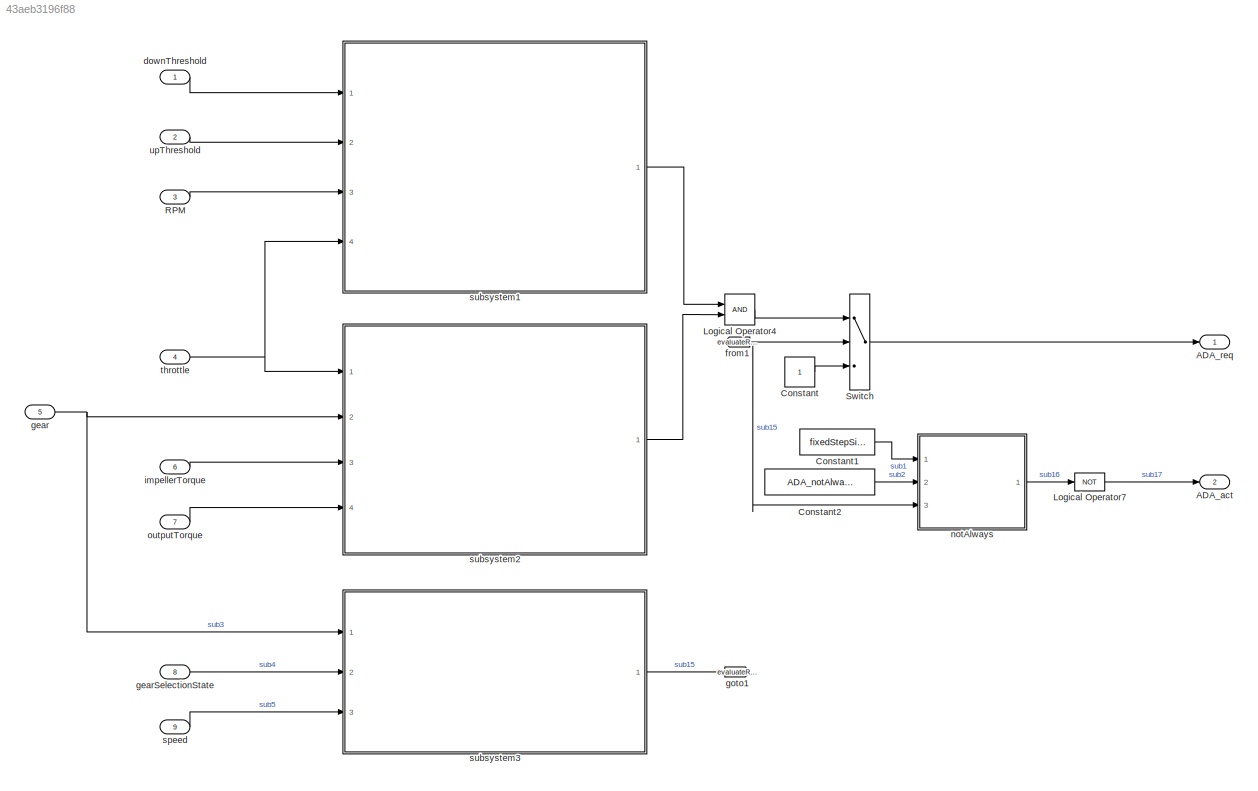
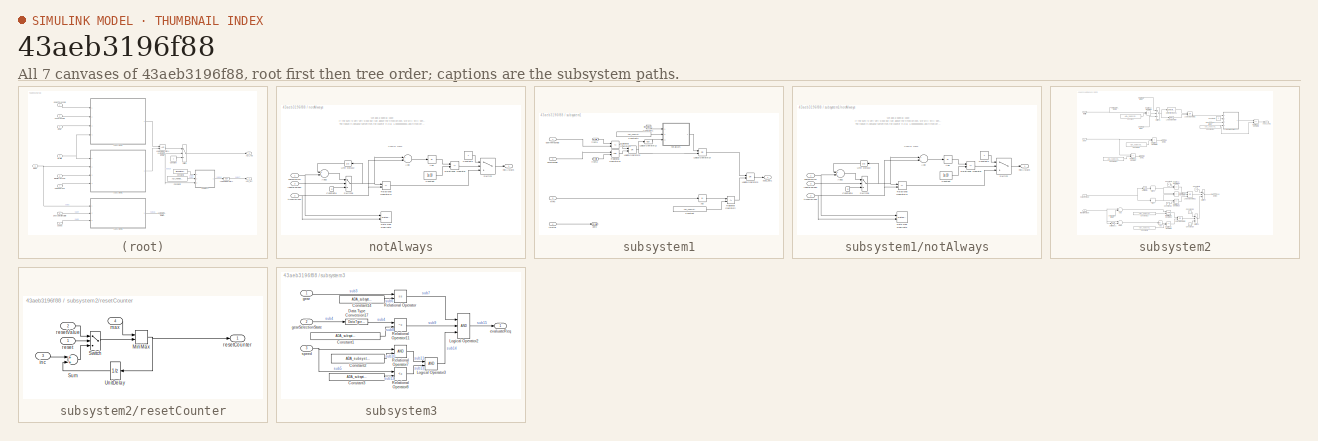
[diagram: thumbnail index - all 7 canvases of the model, root first then tree order]
MODEL slx_43aeb3196f88
KIND model
CONFIG AbsTol = auto
CONFIG EnableMultiTasking = off
CONFIG FixedStep = fixedStepSize
CONFIG MaxStep = auto
CONFIG MinStep = auto
CONFIG RelTol = 1e-3
CONFIG SampleTimeConstraint = Unconstrained
CONFIG Solver = FixedStepAuto
CONFIG SolverName = FixedStepAuto
CONFIG StartTime = 0.0
CONFIG StopTime = 10.0
BLOCK [Outport] ADA_act
  IconDisplay = Port number
  OutDataTypeStr = boolean
  Port = 2
  PortDimensions = 1
  SamplingMode = Sample based
  SignalType = real
  VectorParamsAs1DForOutWhenUnconnected = off
BLOCK [Outport] ADA_req
  IconDisplay = Port number
  OutDataTypeStr = boolean
  PortDimensions = 1
  SamplingMode = Sample based
  SignalType = real
  VectorParamsAs1DForOutWhenUnconnected = off
BLOCK [Constant] Constant
  OutDataTypeStr = boolean
BLOCK [Constant] Constant1
  Value = fixedStepSize
BLOCK [Constant] Constant2
  Value = ADA_notAlwaysHorizon
BLOCK [Logic] Logical Operator4
  AllPortsSameDT = off
  OutDataTypeStr = boolean
  Ports = [2, 1]
BLOCK [Logic] Logical Operator7
  AllPortsSameDT = off
  Operator = NOT
  OutDataTypeStr = boolean
  Ports = [1, 1]
BLOCK [Inport] RPM
  BusOutputAsStruct = on
  Description = Engine Speed [rpm]\nEngine Speed derivative [rpm/s]
  IconDisplay = Port number
  OutDataTypeStr = double
  Port = 3
  PortDimensions = 1
  SamplingMode = Sample based
  SignalType = real
BLOCK [Switch] Switch
  Criteria = u2 ~= 0
  InputSameDT = off
  SaturateOnIntegerOverflow = off
BLOCK [Inport] downThreshold
  IconDisplay = Port number
  OutDataTypeStr = double
BLOCK [From] from1
  AttributesFormatString = %<GotoTag>
  GotoTag = evaluateReq
BLOCK [Inport] gear
  IconDisplay = Port number
  Port = 5
BLOCK [Inport] gearSelectionState
  IconDisplay = Port number
  Port = 8
BLOCK [Goto] goto1
  AttributesFormatString = %<GotoTag>
  GotoTag = evaluateReq
BLOCK [Inport] impellerTorque
  IconDisplay = Port number
  Port = 6
BLOCK [SubSystem] notAlways
  CopyFcn = set_param(gcbh,'LinkStatus','none');
  Ports = [3, 1]
  RequestExecContextInheritance = off
BLOCK [Abs] notAlways/Abs
  SaturateOnIntegerOverflow = off
BLOCK [Sum] notAlways/Add
  InputSameDT = off
  Inputs = +-
  OutDataTypeStr = Inherit: Inherit via internal rule
  Ports = [2, 1]
  SaturateOnIntegerOverflow = off
BLOCK [Sum] notAlways/Add2
  InputSameDT = off
  OutDataTypeStr = Inherit: Inherit via internal rule
  Ports = [2, 1]
  SaturateOnIntegerOverflow = off
BLOCK [Constant] notAlways/Constant
  Value = 1e-10
BLOCK [Constant] notAlways/Constant1
  OutDataTypeStr = boolean
BLOCK [Constant] notAlways/Constant8
  OutDataTypeStr = Inherit: Inherit via back propagation
  Value = 0
BLOCK [DataTypeDuplicate] notAlways/Data Type Duplicate
  Ports = [2]
BLOCK [RelationalOperator] notAlways/Relational Operator
  InputSameDT = off
  Operator = <=
  OutDataTypeStr = boolean
  Ports = [2, 1]
  RndMeth = Simplest
BLOCK [RelationalOperator] notAlways/Relational Operator14
  InputSameDT = off
  Operator = <=
  OutDataTypeStr = boolean
  Ports = [2, 1]
BLOCK [Switch] notAlways/Switch
  Criteria = u2 ~= 0
  InputSameDT = off
  SaturateOnIntegerOverflow = off
BLOCK [Switch] notAlways/Switch6
  Criteria = u2 ~= 0
  InputSameDT = off
  SaturateOnIntegerOverflow = off
BLOCK [UnitDelay] notAlways/Unit Delay2
  HasFrameUpgradeWarning = on
  SampleTime = -1
BLOCK [Inport] notAlways/inputBoolean
  IconDisplay = Port number
  Port = 3
BLOCK [Outport] notAlways/notAlways
  IconDisplay = Port number
  VectorParamsAs1DForOutWhenUnconnected = off
BLOCK [Inport] notAlways/sampleTime
  IconDisplay = Port number
BLOCK [Inport] notAlways/timeHorizon
  IconDisplay = Port number
  Port = 2
BLOCK [Inport] outputTorque
  IconDisplay = Port number
  Port = 7
BLOCK [Inport] speed
  IconDisplay = Port number
  Port = 9
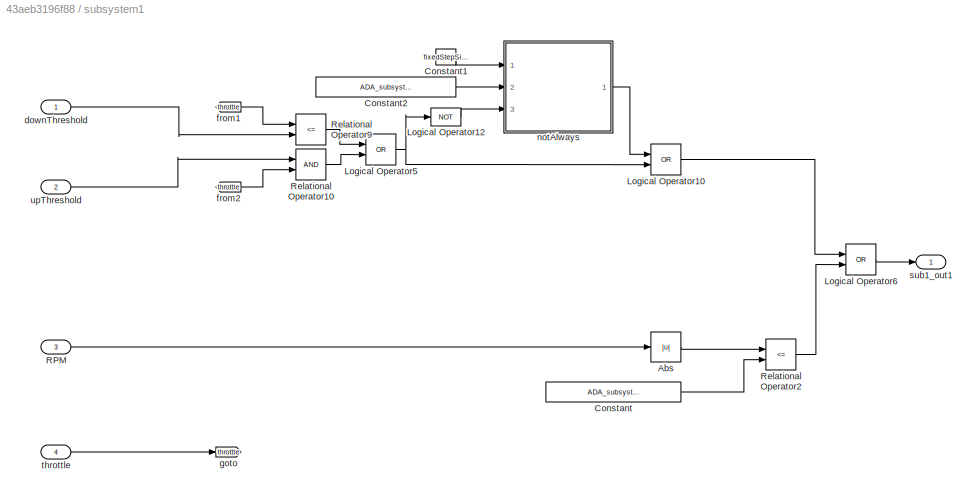
BLOCK [SubSystem] subsystem1
  Ports = [4, 1]
  RequestExecContextInheritance = off
BLOCK [Abs] subsystem1/Abs
  SaturateOnIntegerOverflow = off
BLOCK [Constant] subsystem1/Constant
  Value = ADA_subsystem1_rpmLimit
BLOCK [Constant] subsystem1/Constant1
  Value = fixedStepSize
BLOCK [Constant] subsystem1/Constant2
  Value = ADA_subsystem1_timeHorizon
BLOCK [Logic] subsystem1/Logical Operator10
  AllPortsSameDT = off
  Operator = OR
  OutDataTypeStr = boolean
  Ports = [2, 1]
BLOCK [Logic] subsystem1/Logical Operator12
  AllPortsSameDT = off
  Operator = NOT
  OutDataTypeStr = boolean
  Ports = [1, 1]
BLOCK [Logic] subsystem1/Logical Operator5
  AllPortsSameDT = off
  Operator = OR
  OutDataTypeStr = boolean
  Ports = [2, 1]
BLOCK [Logic] subsystem1/Logical Operator6
  AllPortsSameDT = off
  Operator = OR
  OutDataTypeStr = boolean
  Ports = [2, 1]
BLOCK [Inport] subsystem1/RPM
  IconDisplay = Port number
  Port = 3
BLOCK [RelationalOperator] subsystem1/Relational Operator10
  InputSameDT = off
  OutDataTypeStr = boolean
  Ports = [2, 1]
BLOCK [RelationalOperator] subsystem1/Relational Operator2
  InputSameDT = off
  Operator = <=
  OutDataTypeStr = boolean
  Ports = [2, 1]
BLOCK [RelationalOperator] subsystem1/Relational Operator9
  InputSameDT = off
  Operator = <=
  OutDataTypeStr = boolean
  Ports = [2, 1]
BLOCK [Inport] subsystem1/downThreshold
  IconDisplay = Port number
BLOCK [From] subsystem1/from1
  AttributesFormatString = %<GotoTag>
  GotoTag = throttle
BLOCK [From] subsystem1/from2
  AttributesFormatString = %<GotoTag>
  GotoTag = throttle
BLOCK [Goto] subsystem1/goto
  AttributesFormatString = %<GotoTag>
  GotoTag = throttle
BLOCK [SubSystem] subsystem1/notAlways
  CopyFcn = set_param(gcbh,'LinkStatus','none');
  Ports = [3, 1]
  RequestExecContextInheritance = off
BLOCK [Abs] subsystem1/notAlways/Abs
  SaturateOnIntegerOverflow = off
BLOCK [Sum] subsystem1/notAlways/Add
  InputSameDT = off
  Inputs = +-
  OutDataTypeStr = Inherit: Inherit via internal rule
  Ports = [2, 1]
  SaturateOnIntegerOverflow = off
BLOCK [Sum] subsystem1/notAlways/Add2
  InputSameDT = off
  OutDataTypeStr = Inherit: Inherit via internal rule
  Ports = [2, 1]
  SaturateOnIntegerOverflow = off
BLOCK [Constant] subsystem1/notAlways/Constant
  Value = 1e-10
BLOCK [Constant] subsystem1/notAlways/Constant1
  OutDataTypeStr = boolean
BLOCK [Constant] subsystem1/notAlways/Constant8
  OutDataTypeStr = Inherit: Inherit via back propagation
  Value = 0
BLOCK [DataTypeDuplicate] subsystem1/notAlways/Data Type Duplicate
  Ports = [2]
BLOCK [RelationalOperator] subsystem1/notAlways/Relational Operator
  InputSameDT = off
  Operator = <=
  OutDataTypeStr = boolean
  Ports = [2, 1]
  RndMeth = Simplest
BLOCK [RelationalOperator] subsystem1/notAlways/Relational Operator14
  InputSameDT = off
  Operator = <=
  OutDataTypeStr = boolean
  Ports = [2, 1]
BLOCK [Switch] subsystem1/notAlways/Switch
  Criteria = u2 ~= 0
  InputSameDT = off
  SaturateOnIntegerOverflow = off
BLOCK [Switch] subsystem1/notAlways/Switch6
  Criteria = u2 ~= 0
  InputSameDT = off
  SaturateOnIntegerOverflow = off
BLOCK [UnitDelay] subsystem1/notAlways/Unit Delay2
  HasFrameUpgradeWarning = on
  SampleTime = -1
BLOCK [Inport] subsystem1/notAlways/inputBoolean
  IconDisplay = Port number
  Port = 3
BLOCK [Outport] subsystem1/notAlways/notAlways
  IconDisplay = Port number
  VectorParamsAs1DForOutWhenUnconnected = off
BLOCK [Inport] subsystem1/notAlways/sampleTime
  IconDisplay = Port number
BLOCK [Inport] subsystem1/notAlways/timeHorizon
  IconDisplay = Port number
  Port = 2
BLOCK [Outport] subsystem1/sub1_out1
  IconDisplay = Port number
  VectorParamsAs1DForOutWhenUnconnected = off
BLOCK [Inport] subsystem1/throttle
  IconDisplay = Port number
  Port = 4
BLOCK [Inport] subsystem1/upThreshold
  IconDisplay = Port number
  Port = 2
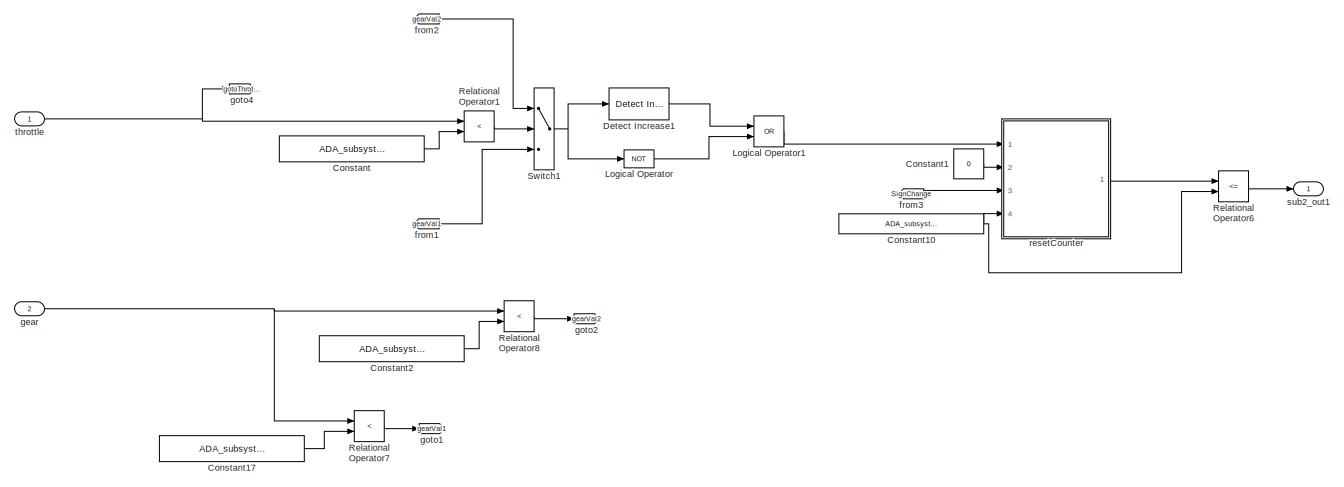
[diagram: subsystem2 - part 1/2, full width, top band]
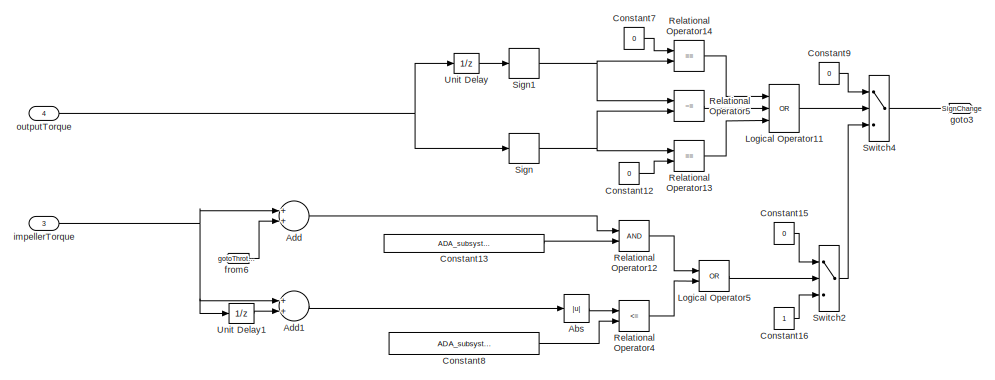
[diagram: subsystem2 - part 2/2, full width, bottom band]
BLOCK [SubSystem] subsystem2
  Ports = [4, 1]
  RequestExecContextInheritance = off
BLOCK [Abs] subsystem2/Abs
  SaturateOnIntegerOverflow = off
BLOCK [Sum] subsystem2/Add
  InputSameDT = off
  OutDataTypeStr = Inherit: Inherit via internal rule
  Ports = [2, 1]
  SaturateOnIntegerOverflow = off
BLOCK [Sum] subsystem2/Add1
  InputSameDT = off
  OutDataTypeStr = Inherit: Inherit via internal rule
  Ports = [2, 1]
  SaturateOnIntegerOverflow = off
BLOCK [Constant] subsystem2/Constant
  Value = ADA_subsystem2_throttleMin
BLOCK [Constant] subsystem2/Constant1
  Value = 0
BLOCK [Constant] subsystem2/Constant10
  Value = ADA_subsystem2_maxValue
BLOCK [Constant] subsystem2/Constant12
  Value = 0
BLOCK [Constant] subsystem2/Constant13
  Value = ADA_subsystem2_impellerMin
BLOCK [Constant] subsystem2/Constant15
  Value = 0
BLOCK [Constant] subsystem2/Constant16
BLOCK [Constant] subsystem2/Constant17
  Value = ADA_subsystem2_gear1
BLOCK [Constant] subsystem2/Constant2
  Value = ADA_subsystem2_gear2
BLOCK [Constant] subsystem2/Constant7
  Value = 0
BLOCK [Constant] subsystem2/Constant8
  Value = ADA_subsystem2_impellerMax
BLOCK [Constant] subsystem2/Constant9
  Value = 0
BLOCK [Reference] subsystem2/Detect Increase1  REF=simulink/Logic and Bit
Operations/Detect
Increase
  Ports = [1, 1]
  SourceBlock = simulink/Logic and Bit\nOperations/Detect\nIncrease
  SourceProductBaseCode = SL
  SourceProductName = Simulink
  SourceType = Detect Increase
BLOCK [Logic] subsystem2/Logical Operator
  AllPortsSameDT = off
  Operator = NOT
  OutDataTypeStr = boolean
  Ports = [1, 1]
BLOCK [Logic] subsystem2/Logical Operator1
  AllPortsSameDT = off
  Operator = OR
  OutDataTypeStr = boolean
  Ports = [2, 1]
BLOCK [Logic] subsystem2/Logical Operator11
  AllPortsSameDT = off
  Inputs = 3
  Operator = OR
  OutDataTypeStr = boolean
  Ports = [3, 1]
BLOCK [Logic] subsystem2/Logical Operator5
  AllPortsSameDT = off
  Operator = OR
  OutDataTypeStr = boolean
  Ports = [2, 1]
BLOCK [RelationalOperator] subsystem2/Relational Operator1
  InputSameDT = off
  Operator = <
  OutDataTypeStr = boolean
  Ports = [2, 1]
BLOCK [RelationalOperator] subsystem2/Relational Operator12
  InputSameDT = off
  OutDataTypeStr = boolean
  Ports = [2, 1]
BLOCK [RelationalOperator] subsystem2/Relational Operator13
  InputSameDT = off
  Operator = ==
  OutDataTypeStr = boolean
  Ports = [2, 1]
BLOCK [RelationalOperator] subsystem2/Relational Operator14
  InputSameDT = off
  Operator = ==
  OutDataTypeStr = boolean
  Ports = [2, 1]
BLOCK [RelationalOperator] subsystem2/Relational Operator4
  InputSameDT = off
  Operator = <=
  OutDataTypeStr = boolean
  Ports = [2, 1]
BLOCK [RelationalOperator] subsystem2/Relational Operator5
  InputSameDT = off
  Operator = ~=
  OutDataTypeStr = boolean
  Ports = [2, 1]
BLOCK [RelationalOperator] subsystem2/Relational Operator6
  InputSameDT = off
  Operator = <=
  OutDataTypeStr = boolean
  Ports = [2, 1]
BLOCK [RelationalOperator] subsystem2/Relational Operator7
  InputSameDT = off
  Operator = <
  OutDataTypeStr = boolean
  Ports = [2, 1]
BLOCK [RelationalOperator] subsystem2/Relational Operator8
  InputSameDT = off
  Operator = <
  OutDataTypeStr = boolean
  Ports = [2, 1]
BLOCK [Signum] subsystem2/Sign
BLOCK [Signum] subsystem2/Sign1
BLOCK [Switch] subsystem2/Switch1
  Criteria = u2 ~= 0
  InputSameDT = off
  SaturateOnIntegerOverflow = off
BLOCK [Switch] subsystem2/Switch2
  Criteria = u2 ~= 0
  InputSameDT = off
  SaturateOnIntegerOverflow = off
BLOCK [Switch] subsystem2/Switch4
  Criteria = u2 ~= 0
  InputSameDT = off
  SaturateOnIntegerOverflow = off
BLOCK [UnitDelay] subsystem2/Unit Delay
  HasFrameUpgradeWarning = on
  SampleTime = -1
BLOCK [UnitDelay] subsystem2/Unit Delay1
  HasFrameUpgradeWarning = on
  SampleTime = -1
BLOCK [From] subsystem2/from1
  AttributesFormatString = %<GotoTag>
  GotoTag = gearVal1
BLOCK [From] subsystem2/from2
  AttributesFormatString = %<GotoTag>
  GotoTag = gearVal2
BLOCK [From] subsystem2/from3
  AttributesFormatString = %<GotoTag>
  GotoTag = SignChange
BLOCK [From] subsystem2/from6
  AttributesFormatString = %<GotoTag>
  GotoTag = gotoThrottle
BLOCK [Inport] subsystem2/gear
  IconDisplay = Port number
  Port = 2
BLOCK [Goto] subsystem2/goto1
  AttributesFormatString = %<GotoTag>
  GotoTag = gearVal1
BLOCK [Goto] subsystem2/goto2
  AttributesFormatString = %<GotoTag>
  GotoTag = gearVal2
BLOCK [Goto] subsystem2/goto3
  AttributesFormatString = %<GotoTag>
  GotoTag = SignChange
BLOCK [Goto] subsystem2/goto4
  AttributesFormatString = %<GotoTag>
  GotoTag = gotoThrottle
BLOCK [Inport] subsystem2/impellerTorque
  IconDisplay = Port number
  Port = 3
BLOCK [Inport] subsystem2/outputTorque
  IconDisplay = Port number
  Port = 4
BLOCK [SubSystem] subsystem2/resetCounter
  CopyFcn = set_param(gcbh,'LinkStatus','none');
  Ports = [4, 1]
  RequestExecContextInheritance = off
BLOCK [MinMax] subsystem2/resetCounter/MinMax
  Inputs = 2
  OutDataTypeStr = Inherit: Inherit via back propagation
  Ports = [2, 1]
  SaturateOnIntegerOverflow = off
  Tag = struct('comment',struct('text','','placement',1),'inputs','2','logdata',struct('maxnumvals',4096,'plotchannels',[],'loggingmode',3,'channels',1),'output',struct('width',1,'name','$S_$B','unit','','type','Float32','offset',0,'max',NaN,'min',NaN,'freeze',1,'lsb',1,'arb',0,'class','default','address','','description','','autoscalingmode',1,'lowerheadroom',1,'upperheadroom',1,'headroomunit','bit','che...<+151ch>
BLOCK [Sum] subsystem2/resetCounter/Sum
  AccumDataTypeStr = Inherit: Same as first input
  OutDataTypeStr = Inherit: Same as accumulator
  Ports = [2, 1]
  SaturateOnIntegerOverflow = off
  Tag = struct('comment',struct('text','','placement',1),'logdata',struct('maxnumvals',4096,'plotchannels',[],'loggingmode',3,'channels',1),'output',struct('width',1,'name','$S_$B','unit','','type','Float32','offset',0,'max',NaN,'min',NaN,'freeze',1,'lsb',1,'arb',0,'class','default','address','','description','','autoscalingmode',1,'lowerheadroom',1,'upperheadroom',1,'headroomunit','bit','checkmin',0,'che...<+135ch>
BLOCK [Switch] subsystem2/resetCounter/Switch
  Criteria = u2 ~= 0
  SaturateOnIntegerOverflow = off
  Tag = struct('comment',struct('text','','placement',1),'logdata',struct('maxnumvals',4096,'plotchannels',[],'loggingmode',3,'channels',1),'output',struct('width',1,'name','$S_$B','unit','','type','Float32','offset',0,'max',NaN,'min',NaN,'freeze',1,'lsb',1,'arb',0,'class','default','address','','description','','autoscalingmode',1,'lowerheadroom',1,'upperheadroom',1,'headroomunit','bit','checkmin',0,'che...<+388ch>
  Threshold = 0.5
BLOCK [UnitDelay] subsystem2/resetCounter/UnitDelay
  HasFrameUpgradeWarning = on
  SampleTime = -1
  Tag = struct('comment',struct('text','','placement',1),'logdata',struct('maxnumvals',4096,'plotchannels',[],'loggingmode',3,'channels',1),'output',struct('width',1,'name','$S_$B','unit','','type','Float32','offset',0,'max',NaN,'min',NaN,'freeze',1,'lsb',1,'arb',0,'class','default','address','','description','','autoscalingmode',1,'lowerheadroom',1,'upperheadroom',1,'headroomunit','bit','checkmin',0,'che...<+348ch>
BLOCK [Inport] subsystem2/resetCounter/inc
  IconDisplay = Port number
  Port = 3
BLOCK [Inport] subsystem2/resetCounter/max
  IconDisplay = Port number
  Port = 4
BLOCK [Inport] subsystem2/resetCounter/reset
  IconDisplay = Port number
BLOCK [Outport] subsystem2/resetCounter/resetCounter
  IconDisplay = Port number
  VectorParamsAs1DForOutWhenUnconnected = off
BLOCK [Inport] subsystem2/resetCounter/resetValue
  IconDisplay = Port number
  Port = 2
BLOCK [Outport] subsystem2/sub2_out1
  IconDisplay = Port number
  VectorParamsAs1DForOutWhenUnconnected = off
BLOCK [Inport] subsystem2/throttle
  IconDisplay = Port number
BLOCK [SubSystem] subsystem3
  Ports = [3, 1]
  RequestExecContextInheritance = off
BLOCK [Constant] subsystem3/Constant1
  Value = ADA_subsystem3_gearSelectionState
BLOCK [Constant] subsystem3/Constant14
  Value = ADA_subsystem3_gear
BLOCK [Constant] subsystem3/Constant2
  Value = ADA_subsystem3_speedMin
BLOCK [Constant] subsystem3/Constant3
  Value = ADA_subsystem3_speedMax
BLOCK [DataTypeConversion] subsystem3/Data Type Conversion17
  RndMeth = Floor
  SaturateOnIntegerOverflow = off
BLOCK [Logic] subsystem3/Logical Operator2
  AllPortsSameDT = off
  Inputs = 3
  OutDataTypeStr = boolean
  Ports = [3, 1]
BLOCK [Logic] subsystem3/Logical Operator3
  AllPortsSameDT = off
  OutDataTypeStr = boolean
  Ports = [2, 1]
BLOCK [RelationalOperator] subsystem3/Relational Operator
  InputSameDT = off
  Operator = ==
  OutDataTypeStr = boolean
  Ports = [2, 1]
BLOCK [RelationalOperator] subsystem3/Relational Operator11
  InputSameDT = off
  Operator = ~=
  OutDataTypeStr = boolean
  Ports = [2, 1]
BLOCK [RelationalOperator] subsystem3/Relational Operator7
  InputSameDT = off
  OutDataTypeStr = boolean
  Ports = [2, 1]
BLOCK [RelationalOperator] subsystem3/Relational Operator8
  InputSameDT = off
  Operator = <=
  OutDataTypeStr = boolean
  Ports = [2, 1]
BLOCK [Outport] subsystem3/evaluateReq
  IconDisplay = Port number
  VectorParamsAs1DForOutWhenUnconnected = off
BLOCK [Inport] subsystem3/gear
  IconDisplay = Port number
BLOCK [Inport] subsystem3/gearSelectionState
  IconDisplay = Port number
  Port = 2
BLOCK [Inport] subsystem3/speed
  IconDisplay = Port number
  Port = 3
BLOCK [Inport] throttle
  IconDisplay = Port number
  Port = 4
BLOCK [Inport] upThreshold
  IconDisplay = Port number
  OutDataTypeStr = double
  Port = 2
ANNOTATION notAlways: We add a special case: If the sum is very very close but just above the timeHorizon, we will still send TRUE as output! The reason is because sometimes the counter is e.g. 1.000000000001 and timeHorizon is 1, which is essentially just a floating point error.
ANNOTATION notAlways: Special check
ANNOTATION subsystem1/notAlways: We add a special case: If the sum is very very close but just above the timeHorizon, we will still send TRUE as output! The reason is because sometimes the counter is e.g. 1.000000000001 and timeHorizon is 1, which is essentially just a floating point error.
ANNOTATION subsystem1/notAlways: Special check
LINE Constant1:1 -> notAlways:1
LINE Constant2:1 -> notAlways:2
LINE Constant:1 -> Switch:3
LINE Logical Operator4:1 -> Switch:1
LINE Logical Operator7:1 -> ADA_act:1
LINE RPM:1 -> subsystem1:3
LINE Switch:1 -> ADA_req:1
LINE downThreshold:1 -> subsystem1:1
NET from1:1 -> Switch:2, notAlways:3
NET gear:1 -> subsystem2:2, subsystem3:1
LINE gearSelectionState:1 -> subsystem3:2
LINE impellerTorque:1 -> subsystem2:3
LINE notAlways/Abs:1 -> notAlways/Relational Operator:1
LINE notAlways/Add2:1 -> notAlways/Switch6:1
LINE notAlways/Add:1 -> notAlways/Abs:1
LINE notAlways/Constant1:1 -> notAlways/Switch:1
LINE notAlways/Constant8:1 -> notAlways/Switch6:3
LINE notAlways/Constant:1 -> notAlways/Relational Operator:2
LINE notAlways/Relational Operator14:1 -> notAlways/Switch:3
LINE notAlways/Relational Operator:1 -> notAlways/Switch:2
NET notAlways/Switch6:1 -> notAlways/Add:1, notAlways/Relational Operator14:1, notAlways/Unit Delay2:1
LINE notAlways/Switch:1 -> notAlways/notAlways:1
LINE notAlways/Unit Delay2:1 -> notAlways/Add2:1
LINE notAlways/inputBoolean:1 -> notAlways/Switch6:2
NET notAlways/sampleTime:1 -> notAlways/Add2:2, notAlways/Data Type Duplicate:1
NET notAlways/timeHorizon:1 -> notAlways/Add:2, notAlways/Data Type Duplicate:2, notAlways/Relational Operator14:2
LINE notAlways:1 -> Logical Operator7:1
LINE outputTorque:1 -> subsystem2:4
LINE speed:1 -> subsystem3:3
LINE subsystem1/Abs:1 -> subsystem1/Relational Operator2:1
LINE subsystem1/Constant1:1 -> subsystem1/notAlways:1
LINE subsystem1/Constant2:1 -> subsystem1/notAlways:2
LINE subsystem1/Constant:1 -> subsystem1/Relational Operator2:2
LINE subsystem1/Logical Operator10:1 -> subsystem1/Logical Operator6:1
LINE subsystem1/Logical Operator12:1 -> subsystem1/notAlways:3
NET subsystem1/Logical Operator5:1 -> subsystem1/Logical Operator10:2, subsystem1/Logical Operator12:1
LINE subsystem1/Logical Operator6:1 -> subsystem1/sub1_out1:1
LINE subsystem1/RPM:1 -> subsystem1/Abs:1
LINE subsystem1/Relational Operator10:1 -> subsystem1/Logical Operator5:2
LINE subsystem1/Relational Operator2:1 -> subsystem1/Logical Operator6:2
LINE subsystem1/Relational Operator9:1 -> subsystem1/Logical Operator5:1
LINE subsystem1/downThreshold:1 -> subsystem1/Relational Operator9:2
LINE subsystem1/from1:1 -> subsystem1/Relational Operator9:1
LINE subsystem1/from2:1 -> subsystem1/Relational Operator10:2
LINE subsystem1/notAlways/Abs:1 -> subsystem1/notAlways/Relational Operator:1
LINE subsystem1/notAlways/Add2:1 -> subsystem1/notAlways/Switch6:1
LINE subsystem1/notAlways/Add:1 -> subsystem1/notAlways/Abs:1
LINE subsystem1/notAlways/Constant1:1 -> subsystem1/notAlways/Switch:1
LINE subsystem1/notAlways/Constant8:1 -> subsystem1/notAlways/Switch6:3
LINE subsystem1/notAlways/Constant:1 -> subsystem1/notAlways/Relational Operator:2
LINE subsystem1/notAlways/Relational Operator14:1 -> subsystem1/notAlways/Switch:3
LINE subsystem1/notAlways/Relational Operator:1 -> subsystem1/notAlways/Switch:2
NET subsystem1/notAlways/Switch6:1 -> subsystem1/notAlways/Add:1, subsystem1/notAlways/Relational Operator14:1, subsystem1/notAlways/Unit Delay2:1
LINE subsystem1/notAlways/Switch:1 -> subsystem1/notAlways/notAlways:1
LINE subsystem1/notAlways/Unit Delay2:1 -> subsystem1/notAlways/Add2:1
LINE subsystem1/notAlways/inputBoolean:1 -> subsystem1/notAlways/Switch6:2
NET subsystem1/notAlways/sampleTime:1 -> subsystem1/notAlways/Add2:2, subsystem1/notAlways/Data Type Duplicate:1
NET subsystem1/notAlways/timeHorizon:1 -> subsystem1/notAlways/Add:2, subsystem1/notAlways/Data Type Duplicate:2, subsystem1/notAlways/Relational Operator14:2
LINE subsystem1/notAlways:1 -> subsystem1/Logical Operator10:1
LINE subsystem1/throttle:1 -> subsystem1/goto:1
LINE subsystem1/upThreshold:1 -> subsystem1/Relational Operator10:1
LINE subsystem1:1 -> Logical Operator4:1
LINE subsystem2/Abs:1 -> subsystem2/Relational Operator4:1
LINE subsystem2/Add1:1 -> subsystem2/Abs:1
LINE subsystem2/Add:1 -> subsystem2/Relational Operator12:1
NET subsystem2/Constant10:1 -> subsystem2/Relational Operator6:2, subsystem2/resetCounter:4
LINE subsystem2/Constant12:1 -> subsystem2/Relational Operator13:2
LINE subsystem2/Constant13:1 -> subsystem2/Relational Operator12:2
LINE subsystem2/Constant15:1 -> subsystem2/Switch2:1
LINE subsystem2/Constant16:1 -> subsystem2/Switch2:3
LINE subsystem2/Constant17:1 -> subsystem2/Relational Operator7:2
LINE subsystem2/Constant1:1 -> subsystem2/resetCounter:2
LINE subsystem2/Constant2:1 -> subsystem2/Relational Operator8:2
LINE subsystem2/Constant7:1 -> subsystem2/Relational Operator14:1
LINE subsystem2/Constant8:1 -> subsystem2/Relational Operator4:2
LINE subsystem2/Constant9:1 -> subsystem2/Switch4:1
LINE subsystem2/Constant:1 -> subsystem2/Relational Operator1:2
LINE subsystem2/Detect Increase1:1 -> subsystem2/Logical Operator1:1
LINE subsystem2/Logical Operator11:1 -> subsystem2/Switch4:2
LINE subsystem2/Logical Operator1:1 -> subsystem2/resetCounter:1
LINE subsystem2/Logical Operator5:1 -> subsystem2/Switch2:2
LINE subsystem2/Logical Operator:1 -> subsystem2/Logical Operator1:2
LINE subsystem2/Relational Operator12:1 -> subsystem2/Logical Operator5:1
LINE subsystem2/Relational Operator13:1 -> subsystem2/Logical Operator11:3
LINE subsystem2/Relational Operator14:1 -> subsystem2/Logical Operator11:1
LINE subsystem2/Relational Operator1:1 -> subsystem2/Switch1:2
LINE subsystem2/Relational Operator4:1 -> subsystem2/Logical Operator5:2
LINE subsystem2/Relational Operator5:1 -> subsystem2/Logical Operator11:2
LINE subsystem2/Relational Operator6:1 -> subsystem2/sub2_out1:1
LINE subsystem2/Relational Operator7:1 -> subsystem2/goto1:1
LINE subsystem2/Relational Operator8:1 -> subsystem2/goto2:1
NET subsystem2/Sign1:1 -> subsystem2/Relational Operator14:2, subsystem2/Relational Operator5:1
NET subsystem2/Sign:1 -> subsystem2/Relational Operator13:1, subsystem2/Relational Operator5:2
NET subsystem2/Switch1:1 -> subsystem2/Detect Increase1:1, subsystem2/Logical Operator:1
LINE subsystem2/Switch2:1 -> subsystem2/Switch4:3
LINE subsystem2/Switch4:1 -> subsystem2/goto3:1
LINE subsystem2/Unit Delay1:1 -> subsystem2/Add1:2
LINE subsystem2/Unit Delay:1 -> subsystem2/Sign1:1
LINE subsystem2/from1:1 -> subsystem2/Switch1:3
LINE subsystem2/from2:1 -> subsystem2/Switch1:1
LINE subsystem2/from3:1 -> subsystem2/resetCounter:3
LINE subsystem2/from6:1 -> subsystem2/Add:2
NET subsystem2/gear:1 -> subsystem2/Relational Operator7:1, subsystem2/Relational Operator8:1
NET subsystem2/impellerTorque:1 -> subsystem2/Add1:1, subsystem2/Add:1, subsystem2/Unit Delay1:1
NET subsystem2/outputTorque:1 -> subsystem2/Sign:1, subsystem2/Unit Delay:1
NET subsystem2/resetCounter/MinMax:1 -> subsystem2/resetCounter/UnitDelay:1, subsystem2/resetCounter/resetCounter:1
LINE subsystem2/resetCounter/Sum:1 -> subsystem2/resetCounter/Switch:3
LINE subsystem2/resetCounter/Switch:1 -> subsystem2/resetCounter/MinMax:2
LINE subsystem2/resetCounter/UnitDelay:1 -> subsystem2/resetCounter/Sum:2
LINE subsystem2/resetCounter/inc:1 -> subsystem2/resetCounter/Sum:1
LINE subsystem2/resetCounter/max:1 -> subsystem2/resetCounter/MinMax:1
LINE subsystem2/resetCounter/reset:1 -> subsystem2/resetCounter/Switch:2
LINE subsystem2/resetCounter/resetValue:1 -> subsystem2/resetCounter/Switch:1
LINE subsystem2/resetCounter:1 -> subsystem2/Relational Operator6:1
NET subsystem2/throttle:1 -> subsystem2/Relational Operator1:1, subsystem2/goto4:1
LINE subsystem2:1 -> Logical Operator4:2
LINE subsystem3/Constant14:1 -> subsystem3/Relational Operator:2
LINE subsystem3/Constant1:1 -> subsystem3/Relational Operator11:2
LINE subsystem3/Constant2:1 -> subsystem3/Relational Operator7:2
LINE subsystem3/Constant3:1 -> subsystem3/Relational Operator8:2
LINE subsystem3/Data Type Conversion17:1 -> subsystem3/Relational Operator11:1
LINE subsystem3/Logical Operator2:1 -> subsystem3/evaluateReq:1
LINE subsystem3/Logical Operator3:1 -> subsystem3/Logical Operator2:3
LINE subsystem3/Relational Operator11:1 -> subsystem3/Logical Operator2:2
LINE subsystem3/Relational Operator7:1 -> subsystem3/Logical Operator3:1
LINE subsystem3/Relational Operator8:1 -> subsystem3/Logical Operator3:2
LINE subsystem3/Relational Operator:1 -> subsystem3/Logical Operator2:1
LINE subsystem3/gear:1 -> subsystem3/Relational Operator:1
LINE subsystem3/gearSelectionState:1 -> subsystem3/Data Type Conversion17:1
NET subsystem3/speed:1 -> subsystem3/Relational Operator7:1, subsystem3/Relational Operator8:1
LINE subsystem3:1 -> goto1:1
NET throttle:1 -> subsystem1:4, subsystem2:1
LINE upThreshold:1 -> subsystem1:2
note: NET lines group one-source signal fan-out (src -> all destinations, sorted); 1:1 wires keep LINE
